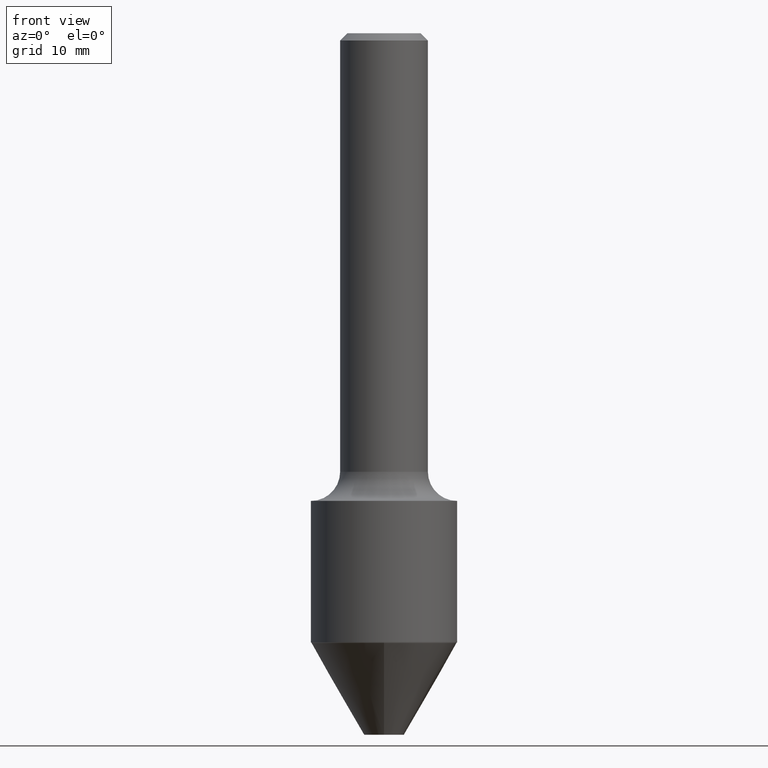
[diagram: clean part render]
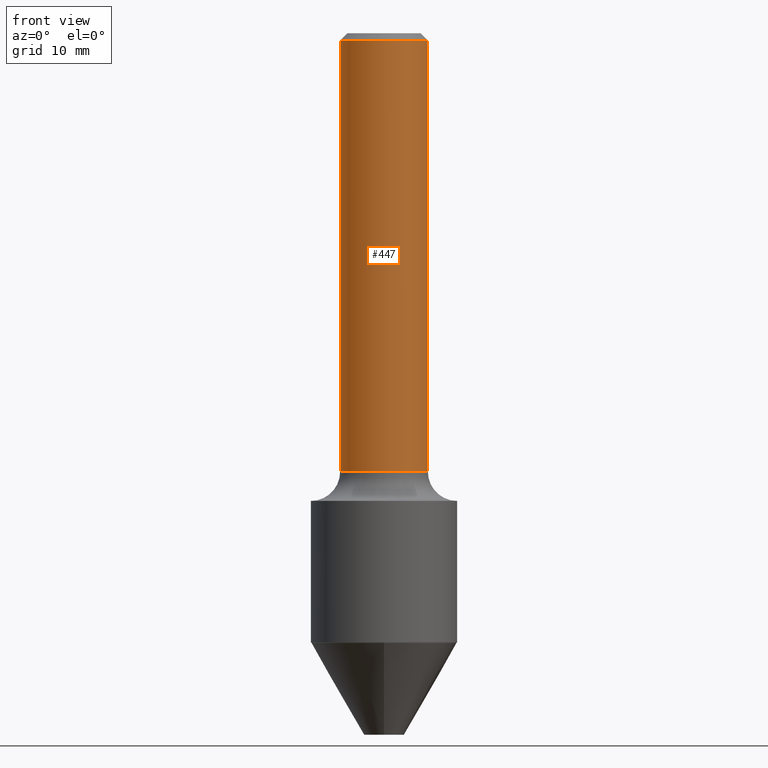
[diagram: same view with one face highlighted and labeled with its STEP entity id]
A machine part, front view. The second image highlights one B-rep face of the part: STEP entity #447.
In plain terms, the highlighted cylindrical surface (partial cylindrical patch) has radius 4.7625 mm, axis along (-0, 0, 1).
Its self-contained STEP definition (entity closure, byte-faithful):
#20 = EDGE_CURVE ( 'NONE', #217, #121, #169, .T. ) ;
#26 = CARTESIAN_POINT ( 'NONE',  ( 0.1875000000000001110, -1.309305502066175797E-15, 9.142831454617385217E-30 ) ) ;
#32 = DIRECTION ( 'NONE',  ( 1.000000000000000000, -6.982962677686265922E-15, 0.000000000000000000 ) ) ;
#40 = AXIS2_PLACEMENT_3D ( 'NONE', #385, #517, #32 ) ;
#43 = ORIENTED_EDGE ( 'NONE', *, *, #104, .T. ) ;
#79 = AXIS2_PLACEMENT_3D ( 'NONE', #105, #432, #125 ) ;
#104 = EDGE_CURVE ( 'NONE', #121, #241, #356, .T. ) ;
#105 = CARTESIAN_POINT ( 'NONE',  ( 0.000000000000000000, 0.000000000000000000, 0.000000000000000000 ) ) ;
#121 = VERTEX_POINT ( 'NONE', #144 ) ;
#125 = DIRECTION ( 'NONE',  ( 1.000000000000000000, -6.982962677686266711E-15, 4.876176775795935793E-29 ) ) ;
#126 = ORIENTED_EDGE ( 'NONE', *, *, #476, .F. ) ;
#135 = DIRECTION ( 'NONE',  ( 1.000000000000000000, -6.982962677686263555E-15, 0.000000000000000000 ) ) ;
#144 = CARTESIAN_POINT ( 'NONE',  ( 0.1875000000000002498, -7.855833012397076871E-15, -1.875000000000000666 ) ) ;
#149 = FACE_OUTER_BOUND ( 'NONE', #308, .T. ) ;
#164 = CARTESIAN_POINT ( 'NONE',  ( -0.1875000000000001110, 1.332267629550188637E-15, -9.223003294227953596E-30 ) ) ;
#168 = DIRECTION ( 'NONE',  ( -2.445468806185136877E-29, 3.491481338843145188E-15, 1.000000000000000000 ) ) ;
#169 = CIRCLE ( 'NONE', #202, 0.1875000000000002498 ) ;
#171 = ORIENTED_EDGE ( 'NONE', *, *, #20, .T. ) ;
#177 = VERTEX_POINT ( 'NONE', #233 ) ;
#180 = VECTOR ( 'NONE', #168, 39.37007874015748143 ) ;
#197 = EDGE_CURVE ( 'NONE', #177, #241, #309, .T. ) ;
#202 = AXIS2_PLACEMENT_3D ( 'NONE', #450, #494, #135 ) ;
#217 = VERTEX_POINT ( 'NONE', #222 ) ;
#222 = CARTESIAN_POINT ( 'NONE',  ( -0.1875000000000002498, -4.988388254608345655E-15, -1.875000000000000666 ) ) ;
#233 = CARTESIAN_POINT ( 'NONE',  ( -0.1875000000000000278, 1.200371284294268058E-15, -0.03120000000000022755 ) ) ;
#241 = VERTEX_POINT ( 'NONE', #389 ) ;
#248 = VECTOR ( 'NONE', #472, 39.37007874015748143 ) ;
#308 = EDGE_LOOP ( 'NONE', ( #126, #171, #43, #497 ) ) ;
#309 = CIRCLE ( 'NONE', #40, 0.1875000000000000278 ) ;
#318 = LINE ( 'NONE', #164, #180 ) ;
#356 = LINE ( 'NONE', #26, #248 ) ;
#385 = CARTESIAN_POINT ( 'NONE',  ( 7.629862675297681829E-31, -1.089342177719069380E-16, -0.03120000000000022755 ) ) ;
#389 = CARTESIAN_POINT ( 'NONE',  ( 0.1875000000000000278, -1.395277592354069315E-15, -0.03120000000000022755 ) ) ;
#432 = DIRECTION ( 'NONE',  ( -2.445468806185136597E-29, 3.491481338843145583E-15, 1.000000000000000000 ) ) ;
#447 = ADVANCED_FACE ( 'NONE', ( #149 ), #471, .T. ) ;
#450 = CARTESIAN_POINT ( 'NONE',  ( 4.585254011597132801E-29, -6.546527510330900285E-15, -1.875000000000000666 ) ) ;
#471 = CYLINDRICAL_SURFACE ( 'NONE', #79, 0.1875000000000001110 ) ;
#472 = DIRECTION ( 'NONE',  ( -2.445468806185136877E-29, 3.491481338843145188E-15, 1.000000000000000000 ) ) ;
#476 = EDGE_CURVE ( 'NONE', #217, #177, #318, .T. ) ;
#494 = DIRECTION ( 'NONE',  ( -2.445468806185136597E-29, 3.491481338843145583E-15, 1.000000000000000000 ) ) ;
#497 = ORIENTED_EDGE ( 'NONE', *, *, #197, .F. ) ;
#517 = DIRECTION ( 'NONE',  ( -2.445468806185136597E-29, 3.491481338843145583E-15, 1.000000000000000000 ) ) ;